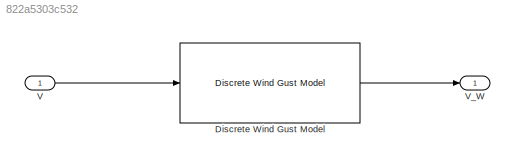
MODEL slx_822a5303c532
KIND model
BLOCK [Reference] Discrete Wind Gust Model  REF=aerolibwind2/Discrete Wind Gust Model
  Ports = [1, 1]
  SourceBlock = aerolibwind2/Discrete Wind Gust Model
  SourceProductBaseCode = AE
  SourceType = Discrete Wind Gust Model
BLOCK [Inport] V
  OutDataTypeStr = double
BLOCK [Outport] V_W
LINE Discrete Wind Gust Model:1 -> V_W:1
LINE V:1 -> Discrete Wind Gust Model:1
